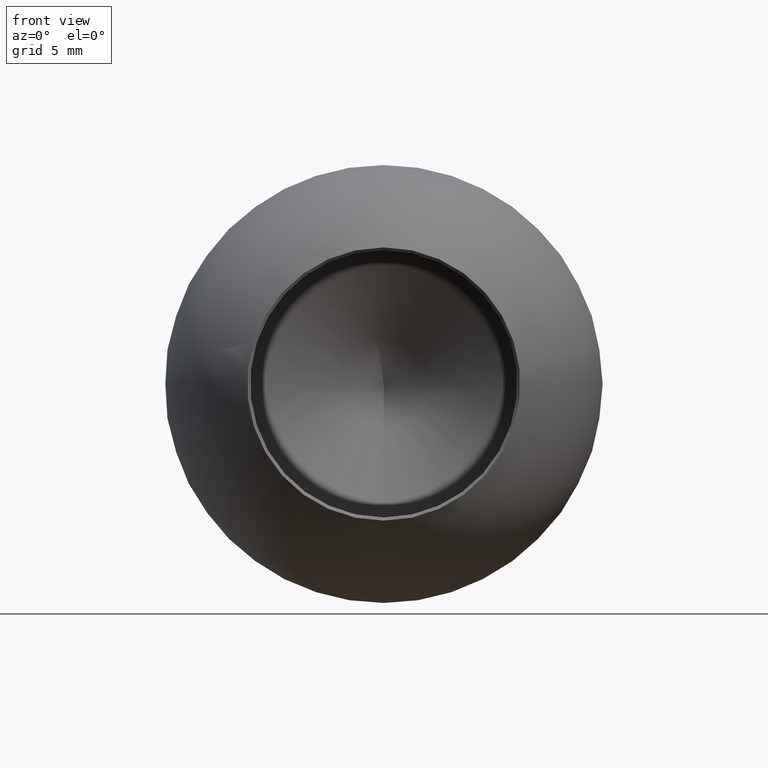
[diagram: clean part render]
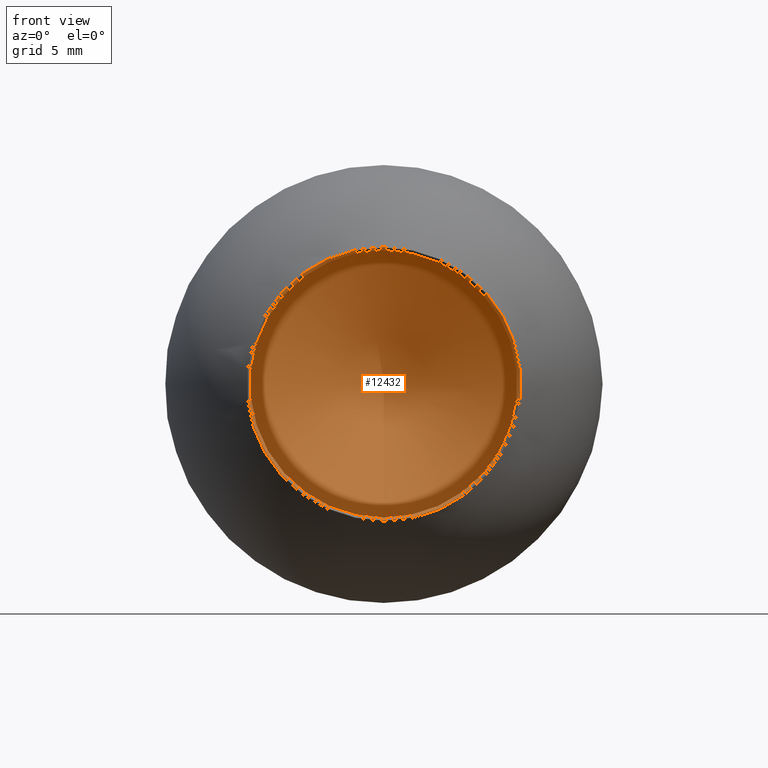
[diagram: same view with one face highlighted and labeled with its STEP entity id]
A machine part, front view. The second image highlights one B-rep face of the part: STEP entity #12432.
In plain terms, the highlighted conical surface has half-angle 59 deg.
Its self-contained STEP definition (entity closure, byte-faithful):
#16 = AXIS2_PLACEMENT_3D ( 'NONE', #7244, #2023, #4088 ) ;
#1480 = EDGE_CURVE ( 'NONE', #5762, #5762, #7953, .T. ) ;
#2023 = DIRECTION ( 'NONE',  ( -0.0000000000000000000, -1.000000000000000000, -0.0000000000000000000 ) ) ;
#2354 = DIRECTION ( 'NONE',  ( -0.0000000000000000000, -1.000000000000000000, -0.0000000000000000000 ) ) ;
#3671 = CONICAL_SURFACE ( 'NONE', #16, 6.099999999999996100, 1.029744258676653900 ) ;
#4088 = DIRECTION ( 'NONE',  ( 0.0000000000000000000, 0.0000000000000000000, -1.000000000000000000 ) ) ;
#5762 = VERTEX_POINT ( 'NONE', #12210 ) ;
#7067 = EDGE_LOOP ( 'NONE', ( #13666 ) ) ;
#7244 = CARTESIAN_POINT ( 'NONE',  ( 0.0000000000000000000, 12.00000000000000000, 0.0000000000000000000 ) ) ;
#7694 = CARTESIAN_POINT ( 'NONE',  ( 0.0000000000000000000, 12.00000000000000000, 0.0000000000000000000 ) ) ;
#7742 = DIRECTION ( 'NONE',  ( 0.0000000000000000000, 0.0000000000000000000, -1.000000000000000000 ) ) ;
#7953 = CIRCLE ( 'NONE', #8794, 6.099999999999996100 ) ;
#8794 = AXIS2_PLACEMENT_3D ( 'NONE', #7694, #2354, #7742 ) ;
#11982 = FACE_OUTER_BOUND ( 'NONE', #7067, .T. ) ;
#12210 = CARTESIAN_POINT ( 'NONE',  ( 0.0000000000000000000, 12.00000000000000000, -6.099999999999996100 ) ) ;
#12432 = ADVANCED_FACE ( 'NONE', ( #11982 ), #3671, .F. ) ;
#13666 = ORIENTED_EDGE ( 'NONE', *, *, #1480, .T. ) ;